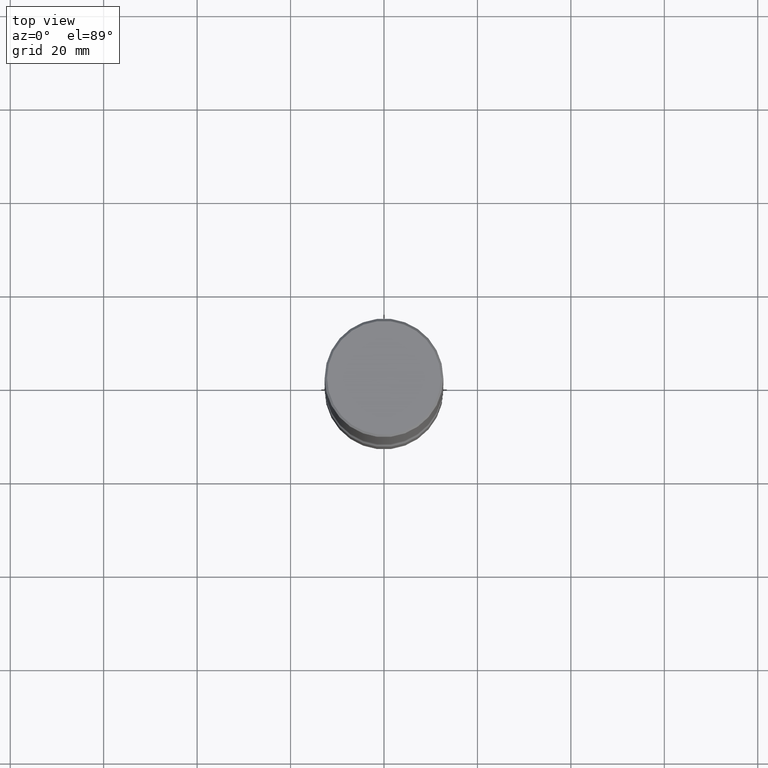
[diagram: clean part render]
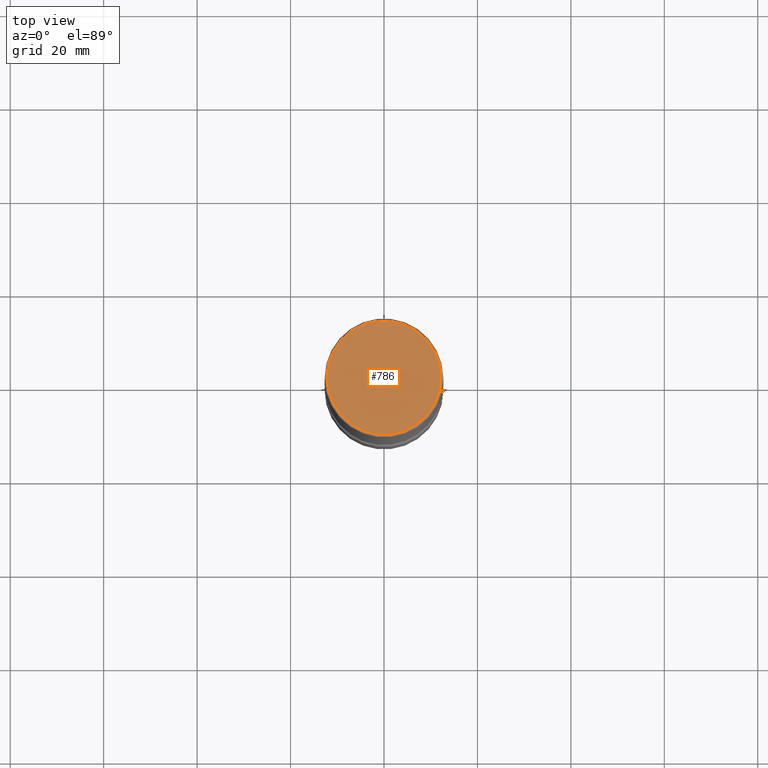
[diagram: same view with one face highlighted and labeled with its STEP entity id]
A machine part, top view. The second image highlights one B-rep face of the part: STEP entity #786.
In plain terms, the highlighted planar face has unit normal (0, -0, -1).
Its self-contained STEP definition (entity closure, byte-faithful):
#54 = VERTEX_POINT ( 'NONE', #160 ) ;
#64 = ORIENTED_EDGE ( 'NONE', *, *, #601, .T. ) ;
#160 = CARTESIAN_POINT ( 'NONE',  ( -0.4799999999999995937, 3.386736898677836436E-15, 1.280553747027767124E-17 ) ) ;
#162 = DIRECTION ( 'NONE',  ( -2.445468806185136597E-29, 3.491481338843145583E-15, 1.000000000000000000 ) ) ;
#202 = VERTEX_POINT ( 'NONE', #679 ) ;
#208 = FACE_OUTER_BOUND ( 'NONE', #559, .T. ) ;
#212 = PLANE ( 'NONE',  #327 ) ;
#239 = DIRECTION ( 'NONE',  ( 1.000000000000000000, -6.982962677686266711E-15, 4.876036955247133327E-29 ) ) ;
#323 = CIRCLE ( 'NONE', #790, 0.4799999999999995937 ) ;
#327 = AXIS2_PLACEMENT_3D ( 'NONE', #407, #460, #662 ) ;
#342 = ORIENTED_EDGE ( 'NONE', *, *, #453, .T. ) ;
#368 = DIRECTION ( 'NONE',  ( 1.000000000000000000, -6.982962677686266711E-15, 4.876036955247133327E-29 ) ) ;
#407 = CARTESIAN_POINT ( 'NONE',  ( 3.351822085289404787E-15, 0.4799999999999995937, -1.669508273909557867E-15 ) ) ;
#409 = CIRCLE ( 'NONE', #570, 0.4799999999999995937 ) ;
#453 = EDGE_CURVE ( 'NONE', #54, #202, #323, .T. ) ;
#460 = DIRECTION ( 'NONE',  ( 2.438088387897960049E-29, -3.491481338843145188E-15, -1.000000000000000000 ) ) ;
#490 = DIRECTION ( 'NONE',  ( -2.445468806185136597E-29, 3.491481338843145583E-15, 1.000000000000000000 ) ) ;
#559 = EDGE_LOOP ( 'NONE', ( #342, #64 ) ) ;
#570 = AXIS2_PLACEMENT_3D ( 'NONE', #730, #162, #368 ) ;
#601 = EDGE_CURVE ( 'NONE', #202, #54, #409, .T. ) ;
#620 = CARTESIAN_POINT ( 'NONE',  ( -3.131554243005659264E-46, 4.471029511141341874E-32, 1.280553747030123384E-17 ) ) ;
#662 = DIRECTION ( 'NONE',  ( -1.000000000000000000, 6.982962677686265922E-15, -4.876176775795935793E-29 ) ) ;
#679 = CARTESIAN_POINT ( 'NONE',  ( 0.4799999999999995937, -3.396558832296480127E-15, 1.280553747032483033E-17 ) ) ;
#730 = CARTESIAN_POINT ( 'NONE',  ( -3.131554243005659264E-46, 4.471029511141341874E-32, 1.280553747030123384E-17 ) ) ;
#786 = ADVANCED_FACE ( 'NONE', ( #208 ), #212, .F. ) ;
#790 = AXIS2_PLACEMENT_3D ( 'NONE', #620, #490, #239 ) ;